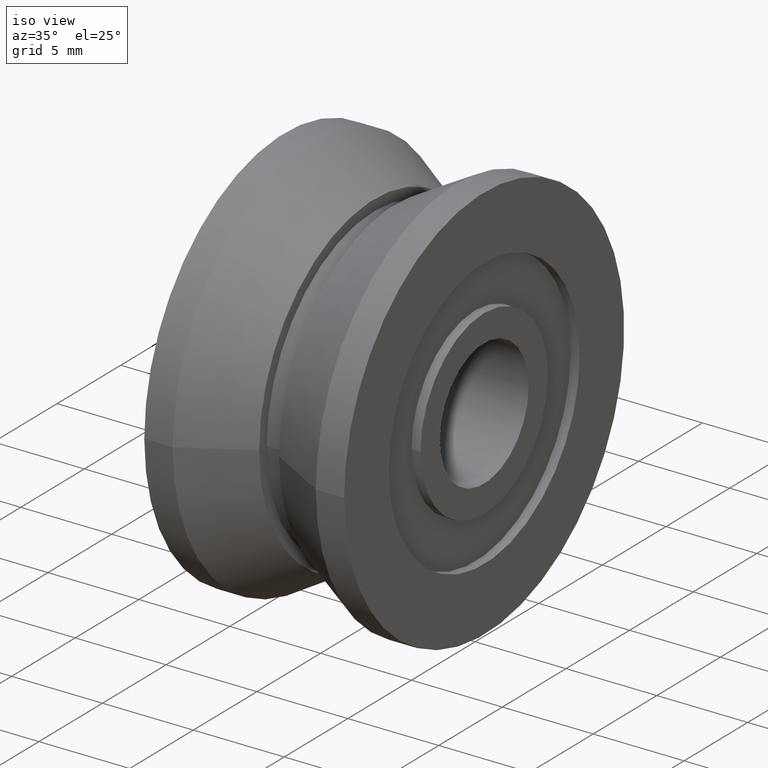
[diagram: clean part render]
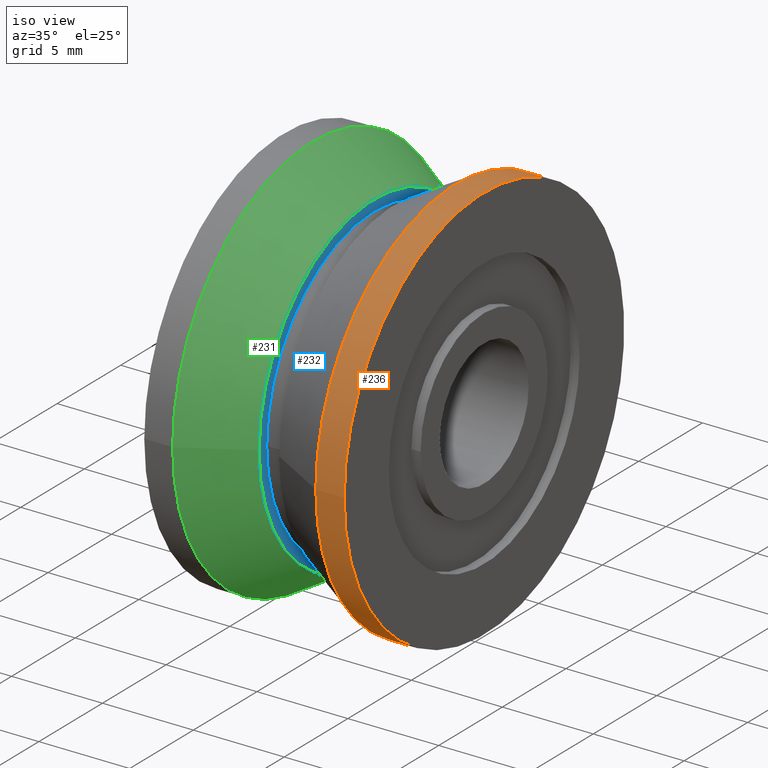
[diagram: same view with three faces highlighted in distinct colors, each labeled with its STEP entity id]
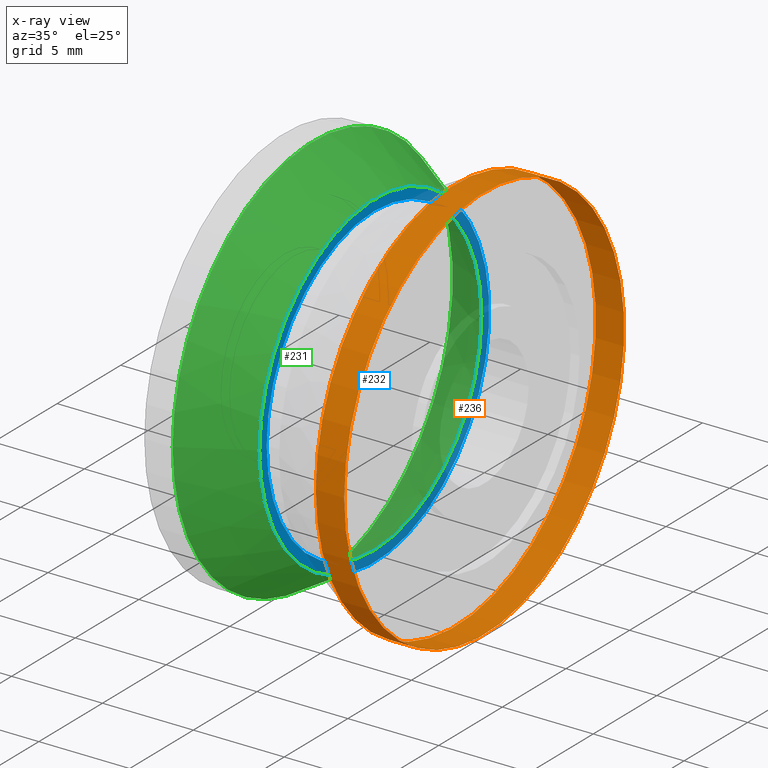
[diagram: x-ray of the same camera — body ghosted, the three highlighted faces saturated]
A machine part, iso view with three faces highlighted in distinct colors.
The next image is the same camera in x-ray (body ghosted, the three faces saturated) — at least one of them is partly hidden behind the body in this view.
Their STEP definitions:

[orange] entity #236 — the highlighted cylindrical surface (bore or boss wall) has radius 11 mm, axis along (1, 0, 0).
#23=LINE('',#431,#33);
#33=VECTOR('',#360,11.);
#41=CYLINDRICAL_SURFACE('',#289,11.);
#64=FACE_OUTER_BOUND('',#87,.T.);
#87=EDGE_LOOP('',(#195,#196,#197,#198));
#108=CIRCLE('',#288,11.);
#109=CIRCLE('',#290,11.);
#126=VERTEX_POINT('',#425);
#127=VERTEX_POINT('',#429);
#149=EDGE_CURVE('',#126,#126,#108,.T.);
#151=EDGE_CURVE('',#127,#127,#109,.T.);
#152=EDGE_CURVE('',#127,#126,#23,.T.);
#195=ORIENTED_EDGE('',*,*,#151,.F.);
#196=ORIENTED_EDGE('',*,*,#152,.T.);
#197=ORIENTED_EDGE('',*,*,#149,.T.);
#198=ORIENTED_EDGE('',*,*,#152,.F.);
#236=ADVANCED_FACE('',(#64),#41,.T.);
#288=AXIS2_PLACEMENT_3D('',#426,#353,#354);
#289=AXIS2_PLACEMENT_3D('',#428,#356,#357);
#290=AXIS2_PLACEMENT_3D('',#430,#358,#359);
#353=DIRECTION('center_axis',(1.,0.,0.));
#354=DIRECTION('ref_axis',(0.,1.,0.));
#356=DIRECTION('center_axis',(1.,0.,0.));
#357=DIRECTION('ref_axis',(0.,1.,0.));
#358=DIRECTION('center_axis',(1.,0.,0.));
#359=DIRECTION('ref_axis',(0.,1.,0.));
#360=DIRECTION('',(-1.,0.,0.));
#425=CARTESIAN_POINT('',(3.93782217350896,-11.,-1.34711147906209E-15));
#426=CARTESIAN_POINT('Origin',(3.93782217350896,0.,0.));
#428=CARTESIAN_POINT('Origin',(4.71891108675448,0.,0.));
#429=CARTESIAN_POINT('',(5.5,-11.,-1.34711147906209E-15));
#430=CARTESIAN_POINT('Origin',(5.5,0.,0.));
#431=CARTESIAN_POINT('',(4.71891108675448,-11.,-1.34711147906209E-15));

[blue] entity #232 — the highlighted planar face has unit normal (1, 0, 0).
#48=FACE_BOUND('',#82,.T.);
#60=FACE_OUTER_BOUND('',#81,.T.);
#81=EDGE_LOOP('',(#183));
#82=EDGE_LOOP('',(#184));
#104=CIRCLE('',#280,9.04403995615804);
#105=CIRCLE('',#282,8.45);
#122=VERTEX_POINT('',#411);
#123=VERTEX_POINT('',#415);
#143=EDGE_CURVE('',#122,#122,#104,.T.);
#145=EDGE_CURVE('',#123,#123,#105,.T.);
#183=ORIENTED_EDGE('',*,*,#143,.T.);
#184=ORIENTED_EDGE('',*,*,#145,.F.);
#220=PLANE('',#281);
#232=ADVANCED_FACE('',(#60,#48),#220,.T.);
#280=AXIS2_PLACEMENT_3D('',#412,#335,#336);
#281=AXIS2_PLACEMENT_3D('',#414,#338,#339);
#282=AXIS2_PLACEMENT_3D('',#416,#340,#341);
#335=DIRECTION('center_axis',(1.,0.,0.));
#336=DIRECTION('ref_axis',(0.,1.,0.));
#338=DIRECTION('center_axis',(1.,0.,0.));
#339=DIRECTION('ref_axis',(0.,0.,-1.));
#340=DIRECTION('center_axis',(1.,0.,0.));
#341=DIRECTION('ref_axis',(0.,1.,0.));
#411=CARTESIAN_POINT('',(-0.549999999999999,-9.04403995615804,-1.10757545836697E-15));
#412=CARTESIAN_POINT('Origin',(-0.55,0.,0.));
#414=CARTESIAN_POINT('Origin',(-0.55,8.74701997807902,0.));
#415=CARTESIAN_POINT('',(-0.55,-8.45,-1.03482654527951E-15));
#416=CARTESIAN_POINT('Origin',(-0.55,0.,0.));

[green] entity #231 — the highlighted conical surface has half-angle 30 deg.
#15=CONICAL_SURFACE('',#279,10.022019978079,0.523598775598303);
#20=LINE('',#413,#30);
#30=VECTOR('',#337,10.022019978079);
#59=FACE_OUTER_BOUND('',#80,.T.);
#80=EDGE_LOOP('',(#179,#180,#181,#182));
#103=CIRCLE('',#278,11.);
#104=CIRCLE('',#280,9.04403995615804);
#121=VERTEX_POINT('',#407);
#122=VERTEX_POINT('',#411);
#141=EDGE_CURVE('',#121,#121,#103,.T.);
#143=EDGE_CURVE('',#122,#122,#104,.T.);
#144=EDGE_CURVE('',#122,#121,#20,.T.);
#179=ORIENTED_EDGE('',*,*,#143,.F.);
#180=ORIENTED_EDGE('',*,*,#144,.T.);
#181=ORIENTED_EDGE('',*,*,#141,.T.);
#182=ORIENTED_EDGE('',*,*,#144,.F.);
#231=ADVANCED_FACE('',(#59),#15,.T.);
#278=AXIS2_PLACEMENT_3D('',#408,#330,#331);
#279=AXIS2_PLACEMENT_3D('',#410,#333,#334);
#280=AXIS2_PLACEMENT_3D('',#412,#335,#336);
#330=DIRECTION('center_axis',(1.,0.,0.));
#331=DIRECTION('ref_axis',(0.,1.,0.));
#333=DIRECTION('center_axis',(-1.,0.,0.));
#334=DIRECTION('ref_axis',(0.,1.,0.));
#335=DIRECTION('center_axis',(1.,0.,0.));
#336=DIRECTION('ref_axis',(0.,1.,0.));
#337=DIRECTION('',(-0.866025403784437,-0.500000000000003,-6.12323399573681E-17));
#407=CARTESIAN_POINT('',(-3.9378221735089,-11.,-1.34711147906209E-15));
#408=CARTESIAN_POINT('Origin',(-3.9378221735089,0.,0.));
#410=CARTESIAN_POINT('Origin',(-2.24391108675445,0.,0.));
#411=CARTESIAN_POINT('',(-0.549999999999999,-9.04403995615804,-1.10757545836697E-15));
#412=CARTESIAN_POINT('Origin',(-0.55,0.,0.));
#413=CARTESIAN_POINT('',(-2.24391108675445,-10.022019978079,-1.22734346871453E-15));